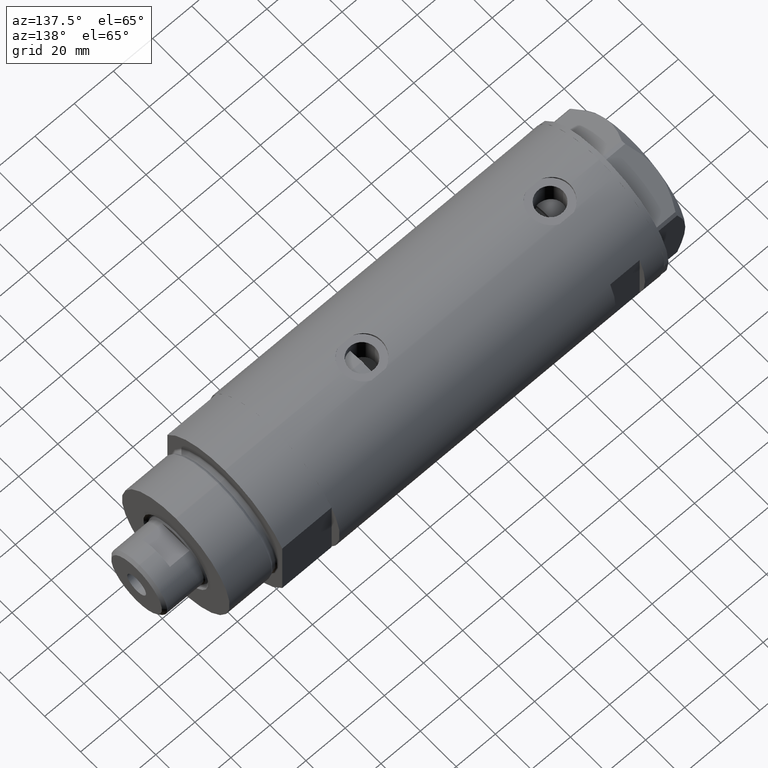
[diagram: clean part render]
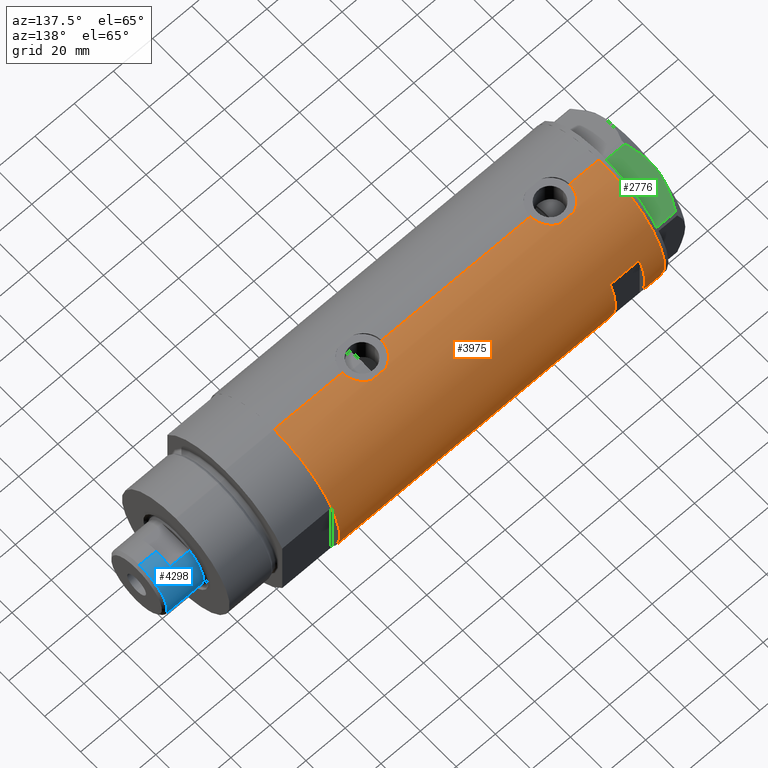
[diagram: same view with three faces highlighted in distinct colors, each labeled with its STEP entity id]
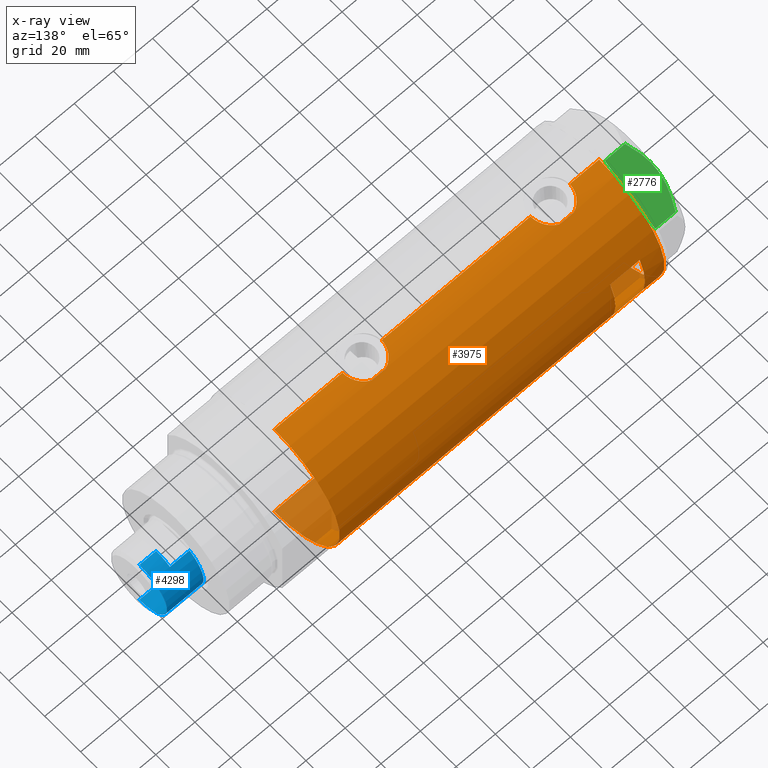
[diagram: x-ray of the same camera — body ghosted, the three highlighted faces saturated]
A machine part, auxiliary view with three faces highlighted in distinct colors.
The next image is the same camera in x-ray (body ghosted, the three faces saturated) — at least one of them is partly hidden behind the body in this view.
Their STEP definitions:

[orange] entity #3975 — the highlighted cylindrical surface (partial cylindrical patch) has radius 36.5 mm, axis along (-1, -0, 0).
#12 = ORIENTED_EDGE ( 'NONE', *, *, #3819, .F. ) ;
#64 = ORIENTED_EDGE ( 'NONE', *, *, #638, .F. ) ;
#77 = CARTESIAN_POINT ( 'NONE',  ( -36.50000000000000000, 4.469960816887838430E-15, 82.90000000000000568 ) ) ;
#123 = CARTESIAN_POINT ( 'NONE',  ( 36.50000000000000000, 0.000000000000000000, -82.90000000000000568 ) ) ;
#124 = ORIENTED_EDGE ( 'NONE', *, *, #3566, .F. ) ;
#127 = CARTESIAN_POINT ( 'NONE',  ( -36.03936508729894683, 5.782103729777503531, 61.29870532603795397 ) ) ;
#143 = CARTESIAN_POINT ( 'NONE',  ( -36.47290054070997911, 1.420408912806971014, 64.98986981660013384 ) ) ;
#155 = CARTESIAN_POINT ( 'NONE',  ( 36.49999999999999289, 1.005842003469123558, 47.89999999999999147 ) ) ;
#161 = CARTESIAN_POINT ( 'NONE',  ( -36.11199073531170001, 5.309184630646985426, 62.20412840766834250 ) ) ;
#174 = ORIENTED_EDGE ( 'NONE', *, *, #4420, .F. ) ;
#193 = CARTESIAN_POINT ( 'NONE',  ( -36.19624103943462501, 4.708090268046841942, 63.03061221446136386 ) ) ;
#210 = CARTESIAN_POINT ( 'NONE',  ( 35.52347503888660185, 8.410566959990466884, -32.60046032740658006 ) ) ;
#217 = CARTESIAN_POINT ( 'NONE',  ( -36.05296344941216091, 5.695624845616822363, 56.31845143463244341 ) ) ;
#231 = CARTESIAN_POINT ( 'NONE',  ( 36.50000000000000000, 0.000000000000000000, -48.10000000000000142 ) ) ;
#259 = CARTESIAN_POINT ( 'NONE',  ( 36.45954139109321090, 1.735915671103594571, -28.24863218852990698 ) ) ;
#270 = CIRCLE ( 'NONE', #4103, 36.50000000000000000 ) ;
#282 = CARTESIAN_POINT ( 'NONE',  ( -36.50000000000000000, 4.469960816887838430E-15, -82.90000000000000568 ) ) ;
#286 = CARTESIAN_POINT ( 'NONE',  ( -36.50000000000000000, 7.463603853851042361E-16, -40.34999999999999432 ) ) ;
#300 = CARTESIAN_POINT ( 'NONE',  ( 35.39804469700248291, 8.909380959553011792, -33.44946835517156103 ) ) ;
#301 = CARTESIAN_POINT ( 'NONE',  ( 35.83170458557579963, 6.955065627744201784, 65.08941671912468507 ) ) ;
#305 = EDGE_LOOP ( 'NONE', ( #4368, #2287, #174, #590 ) ) ;
#372 = CARTESIAN_POINT ( 'NONE',  ( -36.36587679577596077, 3.131448301962866054, -52.01282465573622460 ) ) ;
#386 = VERTEX_POINT ( 'NONE', #2314 ) ;
#388 = CARTESIAN_POINT ( 'NONE',  ( -36.50000000000000000, 4.469960493369248271E-15, 52.65000000000001279 ) ) ;
#395 = VECTOR ( 'NONE', #4148, 1000.000000000000000 ) ;
#493 = CARTESIAN_POINT ( 'NONE',  ( -36.43371204571226230, 2.206934156026284732, 64.75097281670994676 ) ) ;
#514 = CARTESIAN_POINT ( 'NONE',  ( -36.35033317675380715, 3.306376218664574207, 53.59229280583950583 ) ) ;
#526 = CARTESIAN_POINT ( 'NONE',  ( 35.29999999999999716, 9.282241108697837362, 54.17978495245235138 ) ) ;
#531 = CARTESIAN_POINT ( 'NONE',  ( -36.06675137892952421, 5.607935153446965693, 61.66681826008759515 ) ) ;
#545 = VERTEX_POINT ( 'NONE', #77 ) ;
#553 = CARTESIAN_POINT ( 'NONE',  ( 36.41717583764487642, 2.469534783404759182, 67.59348011175673321 ) ) ;
#557 = CARTESIAN_POINT ( 'NONE',  ( -36.50000000000000000, 4.469960493369248271E-15, 52.65000000000001279 ) ) ;
#577 = CARTESIAN_POINT ( 'NONE',  ( -35.96805604460922012, 6.209309709790239218, -47.42112758268170580 ) ) ;
#590 = ORIENTED_EDGE ( 'NONE', *, *, #669, .F. ) ;
#597 = CARTESIAN_POINT ( 'NONE',  ( -35.99700617875954123, 6.038972911021593504, -44.97666814201680552 ) ) ;
#636 = CARTESIAN_POINT ( 'NONE',  ( 36.00287854058830561, 6.017835360303004144, -46.10188117181726142 ) ) ;
#638 = EDGE_CURVE ( 'NONE', #1080, #3334, #871, .T. ) ;
#640 = CARTESIAN_POINT ( 'NONE',  ( 36.49999999999999289, 0.4961820988516169595, 67.89999999999997726 ) ) ;
#658 = CARTESIAN_POINT ( 'NONE',  ( -36.44504802628535600, 2.011764947064739406, -40.67906355091481174 ) ) ;
#669 = EDGE_CURVE ( 'NONE', #1028, #3922, #3795, .T. ) ;
#688 = CARTESIAN_POINT ( 'NONE',  ( 36.50000000000000000, 4.344604608721388599E-19, 67.90000000000000568 ) ) ;
#702 = DIRECTION ( 'NONE',  ( 0.000000000000000000, 0.000000000000000000, 1.000000000000000000 ) ) ;
#724 = CARTESIAN_POINT ( 'NONE',  ( 0.000000000000000000, 0.000000000000000000, -82.90000000000000568 ) ) ;
#728 = CARTESIAN_POINT ( 'NONE',  ( -36.35033317675381426, 3.306376218664579536, -51.90770719416052970 ) ) ;
#733 = LINE ( 'NONE', #785, #1485 ) ;
#748 = CARTESIAN_POINT ( 'NONE',  ( -36.46598788992681506, 1.625721481788706013, -52.64872046713838216 ) ) ;
#774 = AXIS2_PLACEMENT_3D ( 'NONE', #1960, #4020, #919 ) ;
#785 = CARTESIAN_POINT ( 'NONE',  ( -36.50000000000000000, 4.469960816887838430E-15, -82.90000000000000568 ) ) ;
#786 = VERTEX_POINT ( 'NONE', #1356 ) ;
#803 = CARTESIAN_POINT ( 'NONE',  ( -14.49137674618942739, 33.50000000000000000, 72.89999999999999147 ) ) ;
#804 = VERTEX_POINT ( 'NONE', #3774 ) ;
#825 = CARTESIAN_POINT ( 'NONE',  ( 36.26917563968162739, 4.104523505324179311, 48.77784011632527239 ) ) ;
#830 = CARTESIAN_POINT ( 'NONE',  ( -36.50000000000000000, 0.4137727629436733778, 65.15000000000000568 ) ) ;
#844 = LINE ( 'NONE', #1876, #3365 ) ;
#852 = CARTESIAN_POINT ( 'NONE',  ( 35.29999999999999716, 9.282241108697837362, 54.17978495245235138 ) ) ;
#855 = CARTESIAN_POINT ( 'NONE',  ( -35.96094343308265451, 6.249843792257625097, 59.31087110344572011 ) ) ;
#871 = LINE ( 'NONE', #3663, #1268 ) ;
#877 = EDGE_CURVE ( 'NONE', #786, #1098, #1008, .T. ) ;
#885 = DIRECTION ( 'NONE',  ( 0.000000000000000000, 4.625929269271492422E-15, 1.000000000000000000 ) ) ;
#886 = CARTESIAN_POINT ( 'NONE',  ( 36.00145998247697321, 6.026272765084660143, 65.89550388212386167 ) ) ;
#891 = CARTESIAN_POINT ( 'NONE',  ( -35.99530513653992614, 6.049346314076198716, 57.27667416964168012 ) ) ;
#893 = ORIENTED_EDGE ( 'NONE', *, *, #2117, .T. ) ;
#911 = CARTESIAN_POINT ( 'NONE',  ( 35.79715675463676661, 7.130463293899343746, -31.08444415894004109 ) ) ;
#914 = CARTESIAN_POINT ( 'NONE',  ( -35.96094343308264740, 6.249843792257639308, -46.18912889655430121 ) ) ;
#919 = DIRECTION ( 'NONE',  ( 1.000000000000000000, 0.000000000000000000, 0.000000000000000000 ) ) ;
#936 = EDGE_CURVE ( 'NONE', #1972, #3317, #733, .T. ) ;
#954 = CARTESIAN_POINT ( 'NONE',  ( 35.72794581931695035, 7.469526493268208611, -31.44660203271737586 ) ) ;
#976 = CARTESIAN_POINT ( 'NONE',  ( 36.13018480315371761, 5.199168368309162958, -46.65646498208050730 ) ) ;
#981 = CARTESIAN_POINT ( 'NONE',  ( 35.39804469700246869, 8.909380959553008239, 62.55053164482843187 ) ) ;
#986 = CARTESIAN_POINT ( 'NONE',  ( 35.29999999999999716, 9.282241108697837362, -34.37978495245235422 ) ) ;
#1001 = CARTESIAN_POINT ( 'NONE',  ( -36.11199073531169290, 5.309184630646996972, -43.29587159233165039 ) ) ;
#1005 = DIRECTION ( 'NONE',  ( 1.000000000000000000, 0.000000000000000000, 0.000000000000000000 ) ) ;
#1008 = LINE ( 'NONE', #3054, #3440 ) ;
#1028 = VERTEX_POINT ( 'NONE', #803 ) ;
#1070 = CARTESIAN_POINT ( 'NONE',  ( -36.30181775639988473, 3.813582387016784203, -51.56836057574439280 ) ) ;
#1080 = VERTEX_POINT ( 'NONE', #123 ) ;
#1098 = VERTEX_POINT ( 'NONE', #852 ) ;
#1169 = CARTESIAN_POINT ( 'NONE',  ( -36.49297130294515057, 0.8204796224394267368, 65.10931692217734224 ) ) ;
#1183 = CARTESIAN_POINT ( 'NONE',  ( 35.52737867031126484, 8.373910777960910323, 52.41139643282934202 ) ) ;
#1188 = VECTOR ( 'NONE', #2458, 1000.000000000000000 ) ;
#1191 = CARTESIAN_POINT ( 'NONE',  ( -36.16126303108062956, 4.966520032693292563, 62.71641227745282521 ) ) ;
#1217 = CARTESIAN_POINT ( 'NONE',  ( -36.49292802938586533, 0.8230716655928878023, 52.69093061246486798 ) ) ;
#1228 = CARTESIAN_POINT ( 'NONE',  ( 36.18948008481302026, 4.772042575486204363, -46.90177631243157919 ) ) ;
#1237 = CARTESIAN_POINT ( 'NONE',  ( -36.26643311080165688, 4.132772529026629726, 63.60619405269881099 ) ) ;
#1246 = EDGE_CURVE ( 'NONE', #4234, #1028, #4444, .T. ) ;
#1251 = CARTESIAN_POINT ( 'NONE',  ( 35.40502660484482789, 8.876998817796915020, -42.73098724071236632 ) ) ;
#1261 = FACE_BOUND ( 'NONE', #305, .T. ) ;
#1268 = VECTOR ( 'NONE', #1941, 1000.000000000000000 ) ;
#1281 = CIRCLE ( 'NONE', #2441, 36.50000000000000000 ) ;
#1306 = CARTESIAN_POINT ( 'NONE',  ( 36.48988646280794512, 0.9921857666168116818, -28.13671884865573602 ) ) ;
#1350 = CARTESIAN_POINT ( 'NONE',  ( -36.46462099658057099, 1.618684470865508596, -40.55975602975155425 ) ) ;
#1356 = CARTESIAN_POINT ( 'NONE',  ( 35.29999999999999716, 9.282241108697837362, 61.62021504754764578 ) ) ;
#1437 = CARTESIAN_POINT ( 'NONE',  ( -36.49292802938587243, 0.8230716655928884684, -52.80906938753516044 ) ) ;
#1457 = CARTESIAN_POINT ( 'NONE',  ( -36.50000000000000000, 4.469960493366092827E-15, -52.85000000000000853 ) ) ;
#1480 = DIRECTION ( 'NONE',  ( 0.000000000000000000, 1.000000000000000000, -4.562560375171875891E-15 ) ) ;
#1485 = VECTOR ( 'NONE', #2846, 1000.000000000000000 ) ;
#1497 = ORIENTED_EDGE ( 'NONE', *, *, #2841, .F. ) ;
#1498 = B_SPLINE_CURVE_WITH_KNOTS ( 'NONE', 3,
 ( #3360, #300, #210, #1589, #954, #911, #2967, #3064, #1636, #2640, #4065, #4111, #4441, #1954, #1661, #3701, #259, #1306, #2690, #3390 ),
 .UNSPECIFIED., .F., .F.,
 ( 4, 2, 2, 2, 2, 2, 2, 2, 2, 4 ),
 ( 0.000000000000000000, 0.002977391289382820029, 0.003721739111728531758, 0.004466086934074251294, 0.005954782578765692100, 0.007443478223457132038, 0.008932173868148571977, 0.009676521690494288910, 0.01042086951284000758, 0.01190956515753144491 ),
 .UNSPECIFIED. ) ;
#1508 = CARTESIAN_POINT ( 'NONE',  ( 36.29420020483470921, 3.877527130731371230, 48.67901025599706344 ) ) ;
#1514 = CARTESIAN_POINT ( 'NONE',  ( -36.09643313249889474, 5.413601294342269554, 55.76992226608147973 ) ) ;
#1526 = CARTESIAN_POINT ( 'NONE',  ( -14.49137674618942917, 33.50000000000000000, 57.89999999999999147 ) ) ;
#1530 = CARTESIAN_POINT ( 'NONE',  ( -36.44504802628534890, 2.011764947064734077, 64.82093644908518115 ) ) ;
#1549 = CARTESIAN_POINT ( 'NONE',  ( -36.36587679577596077, 3.131448301962862057, 53.48717534426381803 ) ) ;
#1575 = CARTESIAN_POINT ( 'NONE',  ( -35.96805604460922012, 6.209309709790225007, 58.07887241731829420 ) ) ;
#1582 = ORIENTED_EDGE ( 'NONE', *, *, #2074, .F. ) ;
#1586 = CARTESIAN_POINT ( 'NONE',  ( 35.59366931936805400, 8.089554397885871495, -43.99927319087814936 ) ) ;
#1589 = CARTESIAN_POINT ( 'NONE',  ( 35.69321149401852011, 7.633476302278306314, -31.63536927833558110 ) ) ;
#1606 = CARTESIAN_POINT ( 'NONE',  ( 36.36225053217121683, 3.177096004138048713, -47.58516024475981965 ) ) ;
#1610 = CARTESIAN_POINT ( 'NONE',  ( 35.79715675463678082, 7.130463293899336641, 64.91555584105995536 ) ) ;
#1632 = CARTESIAN_POINT ( 'NONE',  ( 36.34070350304396868, 3.414301401755547083, -47.50236217375907444 ) ) ;
#1635 = EDGE_CURVE ( 'NONE', #2489, #3058, #3834, .T. ) ;
#1636 = CARTESIAN_POINT ( 'NONE',  ( 36.00145998247696610, 6.026272765084661920, -30.10449611787613478 ) ) ;
#1661 = CARTESIAN_POINT ( 'NONE',  ( 36.41717583764485511, 2.469534783404757405, -28.40651988824328456 ) ) ;
#1699 = DIRECTION ( 'NONE',  ( 1.000000000000000000, 0.000000000000000000, 0.000000000000000000 ) ) ;
#1754 = EDGE_CURVE ( 'NONE', #386, #2883, #1769, .T. ) ;
#1769 = LINE ( 'NONE', #3474, #395 ) ;
#1781 = VECTOR ( 'NONE', #3897, 1000.000000000000000 ) ;
#1818 = CARTESIAN_POINT ( 'NONE',  ( 0.000000000000000000, 0.000000000000000000, 57.90000000000014779 ) ) ;
#1876 = CARTESIAN_POINT ( 'NONE',  ( -36.50000000000000000, 4.469960816887838430E-15, -82.90000000000000568 ) ) ;
#1879 = CARTESIAN_POINT ( 'NONE',  ( 36.50000000000000000, 0.000000000000000000, 47.89999999999999858 ) ) ;
#1884 = CARTESIAN_POINT ( 'NONE',  ( -36.01679413914727235, 5.919813138266318830, 60.91499691047037146 ) ) ;
#1893 = EDGE_CURVE ( 'NONE', #1968, #4018, #844, .T. ) ;
#1909 = CARTESIAN_POINT ( 'NONE',  ( -36.30181775639987762, 3.813582387016778430, 53.93163942425564983 ) ) ;
#1940 = CARTESIAN_POINT ( 'NONE',  ( -35.98846897517730525, 6.089479646546494429, 60.32234891546520572 ) ) ;
#1941 = DIRECTION ( 'NONE',  ( 0.000000000000000000, 0.000000000000000000, 1.000000000000000000 ) ) ;
#1950 = ORIENTED_EDGE ( 'NONE', *, *, #3500, .T. ) ;
#1954 = CARTESIAN_POINT ( 'NONE',  ( 36.40008489419980720, 2.709263960908029123, -28.47081895403607632 ) ) ;
#1960 = CARTESIAN_POINT ( 'NONE',  ( 0.000000000000000000, 0.000000000000000000, -82.90000000000000568 ) ) ;
#1968 = VERTEX_POINT ( 'NONE', #282 ) ;
#1972 = VERTEX_POINT ( 'NONE', #3718 ) ;
#1978 = CARTESIAN_POINT ( 'NONE',  ( 36.34264078466109993, 3.418717136061407480, 67.31049034040752588 ) ) ;
#1979 = CARTESIAN_POINT ( 'NONE',  ( -36.19624103943463211, 4.708090268046854376, -42.46938778553861482 ) ) ;
#2023 = DIRECTION ( 'NONE',  ( -0.000000000000000000, -0.000000000000000000, -1.000000000000000000 ) ) ;
#2026 = CARTESIAN_POINT ( 'NONE',  ( 36.29611582693039651, 3.878758190381167648, 67.13044989099549298 ) ) ;
#2040 = EDGE_CURVE ( 'NONE', #3893, #4383, #3385, .T. ) ;
#2043 = CARTESIAN_POINT ( 'NONE',  ( -36.01679413914727235, 5.919813138266332153, -44.58500308952962143 ) ) ;
#2052 = DIRECTION ( 'NONE',  ( 1.000000000000000000, 1.776356839400250465E-15, 0.000000000000000000 ) ) ;
#2069 = DIRECTION ( 'NONE',  ( -0.000000000000000000, -0.000000000000000000, -1.000000000000000000 ) ) ;
#2070 = CARTESIAN_POINT ( 'NONE',  ( 36.50000000000000000, 0.000000000000000000, -82.90000000000000568 ) ) ;
#2074 = EDGE_CURVE ( 'NONE', #3334, #4383, #2746, .T. ) ;
#2083 = B_SPLINE_CURVE_WITH_KNOTS ( 'NONE', 3,
 ( #3634, #830, #1169, #143, #2601, #1530, #493, #2909, #3973, #3617, #1237, #193, #1191, #161, #2580, #531, #127, #1884, #3955, #1940, #3597, #855, #2973, #1575, #891, #2282, #217, #2240, #1514, #4311, #2222, #3993, #3319, #1909, #514, #1549, #2260, #2952, #2929, #2623, #1217, #3662, #557 ),
 .UNSPECIFIED., .F., .F.,
 ( 4, 2, 2, 2, 2, 2, 2, 2, 1, 2, 2, 2, 2, 2, 2, 2, 2, 2, 2, 2, 2, 4 ),
 ( 2.134326792795658191E-19, 0.001223527801214134613, 0.001835291701821197691, 0.002447055602428260986, 0.003670583403642388443, 0.004894111204856515032, 0.006117639006070642489, 0.006729402906677714458, 0.007341166807284786426, 0.007952930707891856660, 0.008564694608498929496, 0.009788222409713092514, 0.01101175021092725553, 0.01223527801214141682, 0.01284704191274850180, 0.01345880581335558331, 0.01468233361456974632, 0.01590586141578391108, 0.01651762531639099432, 0.01712938921699807757, 0.01835291701821224059, 0.01957644481942640707 ),
 .UNSPECIFIED. ) ;
#2095 = CARTESIAN_POINT ( 'NONE',  ( -36.44628644024910358, 2.015372769639944828, -52.53028128013585984 ) ) ;
#2117 = EDGE_CURVE ( 'NONE', #1080, #1968, #3073, .T. ) ;
#2154 = ORIENTED_EDGE ( 'NONE', *, *, #2040, .T. ) ;
#2162 = LINE ( 'NONE', #2495, #1781 ) ;
#2222 = CARTESIAN_POINT ( 'NONE',  ( -36.16083474549355259, 4.969527450313370842, 55.08794680877250016 ) ) ;
#2234 = CARTESIAN_POINT ( 'NONE',  ( 36.50000000000000000, 0.000000000000000000, 82.90000000000000568 ) ) ;
#2240 = CARTESIAN_POINT ( 'NONE',  ( -36.06690560274405044, 5.606949625760669242, 56.13114076041065914 ) ) ;
#2254 = B_SPLINE_CURVE_WITH_KNOTS ( 'NONE', 3,
 ( #2734, #981, #2372, #2641, #3066, #1610, #301, #3048, #886, #3655, #2969, #2026, #1978, #4442, #553, #4421, #3746, #4348, #640, #3409 ),
 .UNSPECIFIED., .F., .F.,
 ( 4, 2, 2, 2, 2, 2, 2, 2, 2, 4 ),
 ( 0.000000000000000000, 0.002977391289382842147, 0.003721739111728546070, 0.004466086934074248692, 0.005954782578765684294, 0.007443478223457119895, 0.008932173868148556364, 0.009676521690494280237, 0.01042086951284000584, 0.01190956515753144838 ),
 .UNSPECIFIED. ) ;
#2260 = CARTESIAN_POINT ( 'NONE',  ( -36.39522946636254375, 2.769519034821240844, 53.29336076268729272 ) ) ;
#2276 = CARTESIAN_POINT ( 'NONE',  ( 36.13018480315371761, 5.199168368309162958, 49.34353501791949981 ) ) ;
#2282 = CARTESIAN_POINT ( 'NONE',  ( -36.01524716445113228, 5.931039972055507370, 56.88669268135342350 ) ) ;
#2287 = ORIENTED_EDGE ( 'NONE', *, *, #4277, .F. ) ;
#2304 = CARTESIAN_POINT ( 'NONE',  ( -35.96088929326157313, 6.250155299092693184, -47.00610494763245129 ) ) ;
#2314 = CARTESIAN_POINT ( 'NONE',  ( 36.50000000000000000, 4.344611676915099379E-19, -28.10000000000000142 ) ) ;
#2327 = CARTESIAN_POINT ( 'NONE',  ( -36.47290054070997911, 1.420408912806975898, -40.51013018339984484 ) ) ;
#2372 = CARTESIAN_POINT ( 'NONE',  ( 35.52347503888662317, 8.410566959990465108, 63.39953967259342704 ) ) ;
#2395 = CARTESIAN_POINT ( 'NONE',  ( -36.06675137892952421, 5.607935153446982568, -43.83318173991241906 ) ) ;
#2416 = B_SPLINE_CURVE_WITH_KNOTS ( 'NONE', 3,
 ( #1879, #155, #3288, #4244, #3224, #1508, #825, #4263, #2276, #2551, #2528, #3905, #3927, #4280, #1183, #3654, #3630, #526 ),
 .UNSPECIFIED., .F., .F.,
 ( 4, 2, 2, 2, 2, 2, 2, 2, 4 ),
 ( 6.505213034913026604E-19, 0.002973648994175712851, 0.003717061242719640196, 0.004460473491263567541, 0.005947297988351423099, 0.007434122485439277790, 0.008920946982527131613, 0.01040777147961498630, 0.01189459597670284099 ),
 .UNSPECIFIED. ) ;
#2439 = CARTESIAN_POINT ( 'NONE',  ( -36.11206433103227198, 5.308658295084047296, -49.90484648040978755 ) ) ;
#2441 = AXIS2_PLACEMENT_3D ( 'NONE', #1818, #885, #1480 ) ;
#2458 = DIRECTION ( 'NONE',  ( 0.000000000000000000, 0.000000000000000000, 1.000000000000000000 ) ) ;
#2473 = CARTESIAN_POINT ( 'NONE',  ( 35.34894515018993388, 9.096104616284849342, -42.28464083466543144 ) ) ;
#2489 = VERTEX_POINT ( 'NONE', #688 ) ;
#2495 = CARTESIAN_POINT ( 'NONE',  ( -36.50000000000000000, 4.469960816887838430E-15, -82.90000000000000568 ) ) ;
#2500 = CARTESIAN_POINT ( 'NONE',  ( -36.39522946636255085, 2.769519034821246617, -52.20663923731272860 ) ) ;
#2528 = CARTESIAN_POINT ( 'NONE',  ( 35.93456089024233790, 6.410413305453381838, 50.20914036795854685 ) ) ;
#2537 = ORIENTED_EDGE ( 'NONE', *, *, #936, .T. ) ;
#2551 = CARTESIAN_POINT ( 'NONE',  ( 36.00287854058830561, 6.017835360303004144, 49.89811882818275990 ) ) ;
#2580 = CARTESIAN_POINT ( 'NONE',  ( -36.09617453667821962, 5.415318599347956230, 62.02706642672912807 ) ) ;
#2601 = CARTESIAN_POINT ( 'NONE',  ( -36.46462099658055678, 1.618684470865503489, 64.94024397024845996 ) ) ;
#2614 = CARTESIAN_POINT ( 'NONE',  ( 35.72860827204725354, 7.471059959301286746, -44.76525150474409998 ) ) ;
#2623 = CARTESIAN_POINT ( 'NONE',  ( -36.46598788992681506, 1.625721481788708456, 52.85127953286164626 ) ) ;
#2640 = CARTESIAN_POINT ( 'NONE',  ( 36.12877841835538106, 5.208882251161926824, -29.54946835209708667 ) ) ;
#2641 = CARTESIAN_POINT ( 'NONE',  ( 35.69321149401850590, 7.633476302278302761, 64.36463072166442601 ) ) ;
#2642 = CARTESIAN_POINT ( 'NONE',  ( -36.03936508729894683, 5.782103729777510637, -44.20129467396203893 ) ) ;
#2647 = CYLINDRICAL_SURFACE ( 'NONE', #774, 36.50000000000000000 ) ;
#2688 = CARTESIAN_POINT ( 'NONE',  ( 35.29999999999999716, 9.282241108697837362, -82.90000000000000568 ) ) ;
#2690 = CARTESIAN_POINT ( 'NONE',  ( 36.50000000000000000, 0.4961820988516186803, -28.10000000000000142 ) ) ;
#2706 = CARTESIAN_POINT ( 'NONE',  ( 36.29420020483470921, 3.877527130731371230, -47.32098974400295077 ) ) ;
#2734 = CARTESIAN_POINT ( 'NONE',  ( 35.29999999999999716, 9.282241108697837362, 61.62021504754764578 ) ) ;
#2735 = CARTESIAN_POINT ( 'NONE',  ( -36.30200038006934449, 3.811959488093747961, -41.63027895163993009 ) ) ;
#2737 = DIRECTION ( 'NONE',  ( 0.000000000000000000, 0.000000000000000000, 1.000000000000000000 ) ) ;
#2746 = B_SPLINE_CURVE_WITH_KNOTS ( 'NONE', 3,
 ( #231, #4325, #4417, #1606, #1632, #2706, #4080, #1228, #976, #636, #3986, #3019, #2614, #1586, #2965, #1251, #2473, #3128 ),
 .UNSPECIFIED., .F., .F.,
 ( 4, 2, 2, 2, 2, 2, 2, 2, 4 ),
 ( 6.505213034913026604E-19, 0.002973648994175712851, 0.003717061242719640196, 0.004460473491263567541, 0.005947297988351423099, 0.007434122485439277790, 0.008920946982527131613, 0.01040777147961498630, 0.01189459597670284099 ),
 .UNSPECIFIED. ) ;
#2763 = VERTEX_POINT ( 'NONE', #2996 ) ;
#2787 = AXIS2_PLACEMENT_3D ( 'NONE', #724, #702, #1699 ) ;
#2799 = CARTESIAN_POINT ( 'NONE',  ( -36.16083474549354548, 4.969527450313382388, -50.41205319122751405 ) ) ;
#2835 = ORIENTED_EDGE ( 'NONE', *, *, #1754, .F. ) ;
#2841 = EDGE_CURVE ( 'NONE', #1972, #4018, #3447, .T. ) ;
#2846 = DIRECTION ( 'NONE',  ( 0.000000000000000000, 0.000000000000000000, 1.000000000000000000 ) ) ;
#2883 = VERTEX_POINT ( 'NONE', #4213 ) ;
#2909 = CARTESIAN_POINT ( 'NONE',  ( -36.39638105034455862, 2.774378062517167454, 64.51543332699104383 ) ) ;
#2929 = CARTESIAN_POINT ( 'NONE',  ( -36.44628644024910358, 2.015372769639941275, 52.96971871986416858 ) ) ;
#2952 = CARTESIAN_POINT ( 'NONE',  ( -36.40902375114222167, 2.582415566883931479, 53.20478308530312006 ) ) ;
#2965 = CARTESIAN_POINT ( 'NONE',  ( 35.52737867031126484, 8.373910777960910323, -43.58860356717065798 ) ) ;
#2967 = CARTESIAN_POINT ( 'NONE',  ( 35.83170458557578542, 6.955065627744200007, -30.91058328087535401 ) ) ;
#2969 = CARTESIAN_POINT ( 'NONE',  ( 36.18937351723702989, 4.773052864917642246, 66.70135993118843487 ) ) ;
#2970 = CARTESIAN_POINT ( 'NONE',  ( -35.96793274302673638, 6.210029014836893069, -45.78305762320682248 ) ) ;
#2973 = CARTESIAN_POINT ( 'NONE',  ( -35.96088929326158734, 6.250155299092678085, 58.49389505236757003 ) ) ;
#2974 = CARTESIAN_POINT ( 'NONE',  ( 0.000000000000000000, 0.000000000000000000, 72.89999999999999147 ) ) ;
#2996 = CARTESIAN_POINT ( 'NONE',  ( 14.49137674618942917, 33.50000000000000000, 57.89999999999999147 ) ) ;
#2997 = CARTESIAN_POINT ( 'NONE',  ( -14.49137674618942739, 33.50000000000000000, -82.90000000000000568 ) ) ;
#3019 = CARTESIAN_POINT ( 'NONE',  ( 35.79766710091576698, 7.135341284989892507, -45.12350520560902822 ) ) ;
#3025 = CARTESIAN_POINT ( 'NONE',  ( -35.99530513653993324, 6.049346314076213815, -48.22332583035833409 ) ) ;
#3048 = CARTESIAN_POINT ( 'NONE',  ( 35.93435287561198521, 6.411571491280764867, 65.58988644922843037 ) ) ;
#3049 = CARTESIAN_POINT ( 'NONE',  ( -36.49297130294515057, 0.8204796224394304005, -40.39068307782265066 ) ) ;
#3054 = CARTESIAN_POINT ( 'NONE',  ( 35.29999999999999716, 9.282241108697837362, -82.90000000000000568 ) ) ;
#3058 = VERTEX_POINT ( 'NONE', #2234 ) ;
#3064 = CARTESIAN_POINT ( 'NONE',  ( 35.93435287561198521, 6.411571491280768420, -30.41011355077158029 ) ) ;
#3066 = CARTESIAN_POINT ( 'NONE',  ( 35.72794581931695745, 7.469526493268204170, 64.55339796728263480 ) ) ;
#3067 = CARTESIAN_POINT ( 'NONE',  ( -36.43371204571226940, 2.206934156026296723, -40.74902718329001772 ) ) ;
#3073 = CIRCLE ( 'NONE', #2787, 36.50000000000000000 ) ;
#3088 = CARTESIAN_POINT ( 'NONE',  ( 36.50000000000000000, 0.000000000000000000, -48.10000000000000142 ) ) ;
#3093 = CARTESIAN_POINT ( 'NONE',  ( -36.05296344941215381, 5.695624845616832133, -49.18154856536755659 ) ) ;
#3128 = CARTESIAN_POINT ( 'NONE',  ( 35.29999999999999716, 9.282241108697837362, -41.82021504754764862 ) ) ;
#3132 = CARTESIAN_POINT ( 'NONE',  ( -36.26695135241004664, 4.128455078791307464, -51.31037591644739848 ) ) ;
#3169 = ORIENTED_EDGE ( 'NONE', *, *, #4200, .F. ) ;
#3224 = CARTESIAN_POINT ( 'NONE',  ( 36.34070350304396868, 3.414301401755547083, 48.49763782624093267 ) ) ;
#3288 = CARTESIAN_POINT ( 'NONE',  ( 36.45853166336078743, 1.985123042546143690, 48.04837329582261418 ) ) ;
#3317 = VERTEX_POINT ( 'NONE', #388 ) ;
#3319 = CARTESIAN_POINT ( 'NONE',  ( -36.26695135241003953, 4.128455078791303023, 54.18962408355263705 ) ) ;
#3334 = VERTEX_POINT ( 'NONE', #3088 ) ;
#3360 = CARTESIAN_POINT ( 'NONE',  ( 35.29999999999999716, 9.282241108697837362, -34.37978495245235422 ) ) ;
#3365 = VECTOR ( 'NONE', #3584, 1000.000000000000000 ) ;
#3373 = ORIENTED_EDGE ( 'NONE', *, *, #3952, .F. ) ;
#3385 = LINE ( 'NONE', #2688, #4007 ) ;
#3390 = CARTESIAN_POINT ( 'NONE',  ( 36.50000000000000000, 4.344611676915099379E-19, -28.10000000000000142 ) ) ;
#3408 = CARTESIAN_POINT ( 'NONE',  ( 35.29999999999999716, 9.282241108697837362, -41.82021504754764862 ) ) ;
#3409 = CARTESIAN_POINT ( 'NONE',  ( 36.50000000000000000, 4.344604608721388599E-19, 67.90000000000000568 ) ) ;
#3440 = VECTOR ( 'NONE', #4427, 1000.000000000000000 ) ;
#3447 = B_SPLINE_CURVE_WITH_KNOTS ( 'NONE', 3,
 ( #286, #4042, #3049, #2327, #1350, #658, #3067, #4422, #4443, #2735, #4113, #1979, #3703, #1001, #3682, #2395, #2642, #2043, #597, #4016, #2970, #914, #2304, #577, #3025, #3455, #3093, #4193, #3836, #2439, #2799, #4149, #3132, #1070, #728, #372, #2500, #3852, #2095, #748, #1437, #3879, #1457 ),
 .UNSPECIFIED., .F., .F.,
 ( 4, 2, 2, 2, 2, 2, 2, 2, 1, 2, 2, 2, 2, 2, 2, 2, 2, 2, 2, 2, 2, 4 ),
 ( 7.251201204191552072E-19, 0.001223527801214152827, 0.001835291701821226964, 0.002447055602428301752, 0.003670583403642443086, 0.004894111204856584421, 0.006117639006070725756, 0.006729402906677795122, 0.007341166807284864489, 0.007952930707891932988, 0.008564694608499004089, 0.009788222409713161903, 0.01101175021092732145, 0.01223527801214148100, 0.01284704191274855904, 0.01345880581335564055, 0.01468233361456980184, 0.01590586141578396312, 0.01651762531639104289, 0.01712938921699812267, 0.01835291701821228222, 0.01957644481942644524 ),
 .UNSPECIFIED. ) ;
#3455 = CARTESIAN_POINT ( 'NONE',  ( -36.01524716445113938, 5.931039972055519804, -48.61330731864658361 ) ) ;
#3474 = CARTESIAN_POINT ( 'NONE',  ( 36.50000000000000000, 0.000000000000000000, -82.90000000000000568 ) ) ;
#3500 = EDGE_CURVE ( 'NONE', #804, #545, #2162, .T. ) ;
#3566 = EDGE_CURVE ( 'NONE', #786, #2489, #2254, .T. ) ;
#3584 = DIRECTION ( 'NONE',  ( 0.000000000000000000, 0.000000000000000000, 1.000000000000000000 ) ) ;
#3597 = CARTESIAN_POINT ( 'NONE',  ( -35.96793274302675769, 6.210029014836877970, 59.71694237679319173 ) ) ;
#3598 = VECTOR ( 'NONE', #2069, 1000.000000000000000 ) ;
#3617 = CARTESIAN_POINT ( 'NONE',  ( -36.30200038006935159, 3.811959488093736415, 63.86972104836005570 ) ) ;
#3630 = CARTESIAN_POINT ( 'NONE',  ( 35.34894515018993388, 9.096104616284849342, 53.71535916533458987 ) ) ;
#3634 = CARTESIAN_POINT ( 'NONE',  ( -36.50000000000000000, 2.196845629780489385E-16, 65.15000000000000568 ) ) ;
#3654 = CARTESIAN_POINT ( 'NONE',  ( 35.40502660484482789, 8.876998817796915020, 53.26901275928763368 ) ) ;
#3655 = CARTESIAN_POINT ( 'NONE',  ( 36.12877841835537396, 5.208882251161923271, 66.45053164790293465 ) ) ;
#3662 = CARTESIAN_POINT ( 'NONE',  ( -36.50000000000001421, 0.4083036190459299886, 52.65000000000002700 ) ) ;
#3663 = CARTESIAN_POINT ( 'NONE',  ( 36.50000000000000000, 0.000000000000000000, -82.90000000000000568 ) ) ;
#3682 = CARTESIAN_POINT ( 'NONE',  ( -36.09617453667819831, 5.415318599347969553, -43.47293357327087193 ) ) ;
#3701 = CARTESIAN_POINT ( 'NONE',  ( 36.44688397185921502, 1.983417953489134744, -28.29550042351748829 ) ) ;
#3703 = CARTESIAN_POINT ( 'NONE',  ( -36.16126303108063667, 4.966520032693304998, -42.78358772254716058 ) ) ;
#3708 = ORIENTED_EDGE ( 'NONE', *, *, #4392, .F. ) ;
#3718 = CARTESIAN_POINT ( 'NONE',  ( -36.50000000000000000, 7.463603853851042361E-16, -40.34999999999999432 ) ) ;
#3746 = CARTESIAN_POINT ( 'NONE',  ( 36.45954139109321801, 1.735915671103596125, 67.75136781147011789 ) ) ;
#3758 = ORIENTED_EDGE ( 'NONE', *, *, #877, .T. ) ;
#3766 = LINE ( 'NONE', #4191, #3598 ) ;
#3774 = CARTESIAN_POINT ( 'NONE',  ( -36.50000000000000000, 2.196845629780489385E-16, 65.15000000000000568 ) ) ;
#3795 = CIRCLE ( 'NONE', #4370, 36.50000000000000000 ) ;
#3819 = EDGE_CURVE ( 'NONE', #804, #3317, #2083, .T. ) ;
#3834 = LINE ( 'NONE', #2070, #1188 ) ;
#3836 = CARTESIAN_POINT ( 'NONE',  ( -36.09643313249890895, 5.413601294342283765, -49.73007773391854869 ) ) ;
#3848 = ORIENTED_EDGE ( 'NONE', *, *, #1635, .F. ) ;
#3852 = CARTESIAN_POINT ( 'NONE',  ( -36.40902375114222167, 2.582415566883932811, -52.29521691469690836 ) ) ;
#3879 = CARTESIAN_POINT ( 'NONE',  ( -36.50000000000000711, 0.4083036190459276016, -52.85000000000001563 ) ) ;
#3893 = VERTEX_POINT ( 'NONE', #986 ) ;
#3897 = DIRECTION ( 'NONE',  ( 0.000000000000000000, 0.000000000000000000, 1.000000000000000000 ) ) ;
#3905 = CARTESIAN_POINT ( 'NONE',  ( 35.79766710091576698, 7.135341284989892507, 50.87649479439096467 ) ) ;
#3922 = VERTEX_POINT ( 'NONE', #4404 ) ;
#3927 = CARTESIAN_POINT ( 'NONE',  ( 35.72860827204725354, 7.471059959301286746, 51.23474849525592134 ) ) ;
#3952 = EDGE_CURVE ( 'NONE', #3058, #545, #270, .T. ) ;
#3955 = CARTESIAN_POINT ( 'NONE',  ( -35.99700617875953412, 6.038972911021577517, 60.52333185798319448 ) ) ;
#3973 = CARTESIAN_POINT ( 'NONE',  ( -36.36688032967139605, 3.133094607697478828, 64.32336432637509915 ) ) ;
#3975 = ADVANCED_FACE ( 'NONE', ( #1261, #4046 ), #2647, .T. ) ;
#3986 = CARTESIAN_POINT ( 'NONE',  ( 35.93456089024233790, 6.410413305453381838, -45.79085963204146026 ) ) ;
#3993 = CARTESIAN_POINT ( 'NONE',  ( -36.19597718496778072, 4.710322426433902088, 54.77148389237986237 ) ) ;
#4007 = VECTOR ( 'NONE', #2023, 1000.000000000000000 ) ;
#4016 = CARTESIAN_POINT ( 'NONE',  ( -35.98846897517729815, 6.089479646546508640, -45.17765108453480849 ) ) ;
#4018 = VERTEX_POINT ( 'NONE', #4472 ) ;
#4020 = DIRECTION ( 'NONE',  ( 0.000000000000000000, 0.000000000000000000, 1.000000000000000000 ) ) ;
#4042 = CARTESIAN_POINT ( 'NONE',  ( -36.50000000000000000, 0.4137727629436737109, -40.35000000000000142 ) ) ;
#4046 = FACE_OUTER_BOUND ( 'NONE', #4078, .T. ) ;
#4065 = CARTESIAN_POINT ( 'NONE',  ( 36.18937351723702989, 4.773052864917642246, -29.29864006881156513 ) ) ;
#4078 = EDGE_LOOP ( 'NONE', ( #893, #4324, #1497, #2537, #12, #1950, #3373, #3848, #124, #3758, #3169, #2835, #3708, #2154, #1582, #64 ) ) ;
#4080 = CARTESIAN_POINT ( 'NONE',  ( 36.26917563968162739, 4.104523505324179311, -47.22215988367477024 ) ) ;
#4091 = CARTESIAN_POINT ( 'NONE',  ( 0.000000000000000000, 0.000000000000000000, 82.90000000000000568 ) ) ;
#4103 = AXIS2_PLACEMENT_3D ( 'NONE', #4091, #2737, #1005 ) ;
#4111 = CARTESIAN_POINT ( 'NONE',  ( 36.29611582693038940, 3.878758190381168092, -28.86955010900449992 ) ) ;
#4113 = CARTESIAN_POINT ( 'NONE',  ( -36.26643311080166399, 4.132772529026643049, -41.89380594730118190 ) ) ;
#4148 = DIRECTION ( 'NONE',  ( 0.000000000000000000, 0.000000000000000000, 1.000000000000000000 ) ) ;
#4149 = CARTESIAN_POINT ( 'NONE',  ( -36.19597718496778782, 4.710322426433910081, -50.72851610762017316 ) ) ;
#4157 = DIRECTION ( 'NONE',  ( -0.000000000000000000, -0.000000000000000000, -1.000000000000000000 ) ) ;
#4191 = CARTESIAN_POINT ( 'NONE',  ( 14.49137674618942739, 33.50000000000000000, -82.90000000000000568 ) ) ;
#4193 = CARTESIAN_POINT ( 'NONE',  ( -36.06690560274405044, 5.606949625760679901, -49.36885923958933375 ) ) ;
#4200 = EDGE_CURVE ( 'NONE', #2883, #1098, #2416, .T. ) ;
#4213 = CARTESIAN_POINT ( 'NONE',  ( 36.50000000000000000, 0.000000000000000000, 47.89999999999999858 ) ) ;
#4234 = VERTEX_POINT ( 'NONE', #1526 ) ;
#4244 = CARTESIAN_POINT ( 'NONE',  ( 36.36225053217121683, 3.177096004138048713, 48.41483975524019456 ) ) ;
#4263 = CARTESIAN_POINT ( 'NONE',  ( 36.18948008481302026, 4.772042575486204363, 49.09822368756843503 ) ) ;
#4277 = EDGE_CURVE ( 'NONE', #2763, #4234, #1281, .T. ) ;
#4280 = CARTESIAN_POINT ( 'NONE',  ( 35.59366931936805400, 8.089554397885871495, 52.00072680912185774 ) ) ;
#4311 = CARTESIAN_POINT ( 'NONE',  ( -36.11206433103227909, 5.308658295084034862, 55.59515351959023377 ) ) ;
#4324 = ORIENTED_EDGE ( 'NONE', *, *, #1893, .T. ) ;
#4325 = CARTESIAN_POINT ( 'NONE',  ( 36.49999999999999289, 1.005842003469123558, -48.09999999999999432 ) ) ;
#4348 = CARTESIAN_POINT ( 'NONE',  ( 36.48988646280793802, 0.9921857666168150125, 67.86328115134426753 ) ) ;
#4363 = VECTOR ( 'NONE', #4402, 1000.000000000000000 ) ;
#4368 = ORIENTED_EDGE ( 'NONE', *, *, #1246, .F. ) ;
#4370 = AXIS2_PLACEMENT_3D ( 'NONE', #2974, #4157, #2052 ) ;
#4383 = VERTEX_POINT ( 'NONE', #3408 ) ;
#4392 = EDGE_CURVE ( 'NONE', #3893, #386, #1498, .T. ) ;
#4402 = DIRECTION ( 'NONE',  ( 0.000000000000000000, 0.000000000000000000, 1.000000000000000000 ) ) ;
#4404 = CARTESIAN_POINT ( 'NONE',  ( 14.49137674618942739, 33.50000000000000000, 72.89999999999999147 ) ) ;
#4417 = CARTESIAN_POINT ( 'NONE',  ( 36.45853166336078743, 1.985123042546143690, -47.95162670417735740 ) ) ;
#4420 = EDGE_CURVE ( 'NONE', #3922, #2763, #3766, .T. ) ;
#4421 = CARTESIAN_POINT ( 'NONE',  ( 36.44688397185922213, 1.983417953489136965, 67.70449957648254724 ) ) ;
#4422 = CARTESIAN_POINT ( 'NONE',  ( -36.39638105034455151, 2.774378062517180332, -40.98456667300897749 ) ) ;
#4427 = DIRECTION ( 'NONE',  ( -0.000000000000000000, -0.000000000000000000, -1.000000000000000000 ) ) ;
#4441 = CARTESIAN_POINT ( 'NONE',  ( 36.34264078466111414, 3.418717136061404815, -28.68950965959248123 ) ) ;
#4442 = CARTESIAN_POINT ( 'NONE',  ( 36.40008489419981430, 2.709263960908035784, 67.52918104596393789 ) ) ;
#4443 = CARTESIAN_POINT ( 'NONE',  ( -36.36688032967139605, 3.133094607697487266, -41.17663567362491506 ) ) ;
#4444 = LINE ( 'NONE', #2997, #4363 ) ;
#4472 = CARTESIAN_POINT ( 'NONE',  ( -36.50000000000000000, 4.469960493366092827E-15, -52.85000000000000853 ) ) ;

[blue] entity #4298 — the highlighted cylindrical surface (partial cylindrical patch) has radius 15.5 mm, axis along (-1, -0, 0).
#1 = EDGE_CURVE ( 'NONE', #945, #173, #4226, .T. ) ;
#78 = DIRECTION ( 'NONE',  ( 0.000000000000000000, 0.000000000000000000, 1.000000000000000000 ) ) ;
#110 = EDGE_CURVE ( 'NONE', #3980, #3604, #1189, .T. ) ;
#173 = VERTEX_POINT ( 'NONE', #2673 ) ;
#219 = ORIENTED_EDGE ( 'NONE', *, *, #3675, .T. ) ;
#341 = ORIENTED_EDGE ( 'NONE', *, *, #2573, .T. ) ;
#480 = VECTOR ( 'NONE', #3553, 1000.000000000000000 ) ;
#482 = VERTEX_POINT ( 'NONE', #2981 ) ;
#575 = CYLINDRICAL_SURFACE ( 'NONE', #628, 15.49999999999999822 ) ;
#621 = CARTESIAN_POINT ( 'NONE',  ( 15.49999999999999822, 1.898202538678397163E-15, 200.0000000000000000 ) ) ;
#628 = AXIS2_PLACEMENT_3D ( 'NONE', #4040, #3679, #999 ) ;
#794 = LINE ( 'NONE', #2179, #2496 ) ;
#818 = CARTESIAN_POINT ( 'NONE',  ( -13.48630416385452513, 7.639999999999917968, 190.0000000000000000 ) ) ;
#831 = AXIS2_PLACEMENT_3D ( 'NONE', #2001, #3310, #2366 ) ;
#867 = CARTESIAN_POINT ( 'NONE',  ( 0.000000000000000000, 0.000000000000000000, 190.0000000000000000 ) ) ;
#913 = CARTESIAN_POINT ( 'NONE',  ( 13.48630416385452868, 7.639999999999997904, 200.0000000000000000 ) ) ;
#941 = CARTESIAN_POINT ( 'NONE',  ( 15.50000000000000178, 1.898202538678397557E-15, 200.0000000000000000 ) ) ;
#945 = VERTEX_POINT ( 'NONE', #2760 ) ;
#999 = DIRECTION ( 'NONE',  ( -1.000000000000000000, 0.000000000000000000, 0.000000000000000000 ) ) ;
#1079 = CARTESIAN_POINT ( 'NONE',  ( 13.48630416385452868, 7.639999999999997904, 200.0000000000000000 ) ) ;
#1140 = CARTESIAN_POINT ( 'NONE',  ( -13.48630416385452868, 7.639999999999998792, 200.0000000000000000 ) ) ;
#1157 = EDGE_CURVE ( 'NONE', #173, #3980, #2328, .T. ) ;
#1189 = CIRCLE ( 'NONE', #2719, 15.50000000000000000 ) ;
#1213 = ORIENTED_EDGE ( 'NONE', *, *, #3188, .F. ) ;
#1280 = CARTESIAN_POINT ( 'NONE',  ( 13.48630416385452868, 7.639999999999997904, 190.0000000000000000 ) ) ;
#1324 = DIRECTION ( 'NONE',  ( -0.000000000000000000, -0.000000000000000000, -1.000000000000000000 ) ) ;
#1406 = AXIS2_PLACEMENT_3D ( 'NONE', #3417, #2447, #2422 ) ;
#1414 = AXIS2_PLACEMENT_3D ( 'NONE', #867, #1880, #3227 ) ;
#1464 = DIRECTION ( 'NONE',  ( 1.000000000000000000, 0.000000000000000000, 0.000000000000000000 ) ) ;
#1688 = VECTOR ( 'NONE', #2695, 1000.000000000000000 ) ;
#1802 = CARTESIAN_POINT ( 'NONE',  ( 0.000000000000000000, 0.000000000000000000, 200.0000000000000000 ) ) ;
#1853 = EDGE_LOOP ( 'NONE', ( #2550, #2064, #1921, #219, #341, #1213, #2874, #2000 ) ) ;
#1880 = DIRECTION ( 'NONE',  ( 0.000000000000000000, 0.000000000000000000, 1.000000000000000000 ) ) ;
#1892 = VERTEX_POINT ( 'NONE', #818 ) ;
#1921 = ORIENTED_EDGE ( 'NONE', *, *, #110, .T. ) ;
#1969 = EDGE_CURVE ( 'NONE', #3018, #482, #3728, .T. ) ;
#2000 = ORIENTED_EDGE ( 'NONE', *, *, #2284, .F. ) ;
#2001 = CARTESIAN_POINT ( 'NONE',  ( 0.000000000000000000, 0.000000000000000000, 200.0000000000000000 ) ) ;
#2064 = ORIENTED_EDGE ( 'NONE', *, *, #1157, .T. ) ;
#2151 = LINE ( 'NONE', #1079, #480 ) ;
#2179 = CARTESIAN_POINT ( 'NONE',  ( -15.49999999999999822, 0.000000000000000000, 200.0000000000000000 ) ) ;
#2187 = FACE_OUTER_BOUND ( 'NONE', #1853, .T. ) ;
#2284 = EDGE_CURVE ( 'NONE', #945, #482, #794, .T. ) ;
#2323 = LINE ( 'NONE', #4011, #3873 ) ;
#2328 = LINE ( 'NONE', #621, #1688 ) ;
#2366 = DIRECTION ( 'NONE',  ( 1.000000000000000000, 0.000000000000000000, 0.000000000000000000 ) ) ;
#2422 = DIRECTION ( 'NONE',  ( 1.000000000000000000, 0.000000000000000000, 0.000000000000000000 ) ) ;
#2447 = DIRECTION ( 'NONE',  ( 0.000000000000000000, 0.000000000000000000, -1.000000000000000000 ) ) ;
#2496 = VECTOR ( 'NONE', #2740, 1000.000000000000000 ) ;
#2550 = ORIENTED_EDGE ( 'NONE', *, *, #1, .T. ) ;
#2573 = EDGE_CURVE ( 'NONE', #4365, #1892, #3369, .T. ) ;
#2673 = CARTESIAN_POINT ( 'NONE',  ( 15.49999999999999822, 1.898202538678397163E-15, 208.5999999999999659 ) ) ;
#2695 = DIRECTION ( 'NONE',  ( -0.000000000000000000, -0.000000000000000000, -1.000000000000000000 ) ) ;
#2719 = AXIS2_PLACEMENT_3D ( 'NONE', #1802, #78, #1464 ) ;
#2740 = DIRECTION ( 'NONE',  ( -0.000000000000000000, -0.000000000000000000, -1.000000000000000000 ) ) ;
#2760 = CARTESIAN_POINT ( 'NONE',  ( -15.49999999999999822, 0.000000000000000000, 208.5999999999999659 ) ) ;
#2874 = ORIENTED_EDGE ( 'NONE', *, *, #1969, .T. ) ;
#2981 = CARTESIAN_POINT ( 'NONE',  ( -15.50000000000000178, 0.000000000000000000, 200.0000000000000000 ) ) ;
#3018 = VERTEX_POINT ( 'NONE', #1140 ) ;
#3188 = EDGE_CURVE ( 'NONE', #3018, #1892, #2323, .T. ) ;
#3227 = DIRECTION ( 'NONE',  ( 1.000000000000000000, 0.000000000000000000, 0.000000000000000000 ) ) ;
#3310 = DIRECTION ( 'NONE',  ( 0.000000000000000000, 0.000000000000000000, 1.000000000000000000 ) ) ;
#3369 = CIRCLE ( 'NONE', #1414, 15.49999999999995737 ) ;
#3417 = CARTESIAN_POINT ( 'NONE',  ( 0.000000000000000000, 0.000000000000000000, 208.5999999999999659 ) ) ;
#3553 = DIRECTION ( 'NONE',  ( -0.000000000000000000, -0.000000000000000000, -1.000000000000000000 ) ) ;
#3604 = VERTEX_POINT ( 'NONE', #913 ) ;
#3675 = EDGE_CURVE ( 'NONE', #3604, #4365, #2151, .T. ) ;
#3679 = DIRECTION ( 'NONE',  ( -0.000000000000000000, -0.000000000000000000, -1.000000000000000000 ) ) ;
#3728 = CIRCLE ( 'NONE', #831, 15.50000000000000000 ) ;
#3873 = VECTOR ( 'NONE', #1324, 1000.000000000000000 ) ;
#3980 = VERTEX_POINT ( 'NONE', #941 ) ;
#4011 = CARTESIAN_POINT ( 'NONE',  ( -13.48630416385452868, 7.639999999999998792, 200.0000000000000000 ) ) ;
#4040 = CARTESIAN_POINT ( 'NONE',  ( 0.000000000000000000, 0.000000000000000000, 200.0000000000000000 ) ) ;
#4226 = CIRCLE ( 'NONE', #1406, 15.49999999999999822 ) ;
#4298 = ADVANCED_FACE ( 'NONE', ( #2187 ), #575, .T. ) ;
#4365 = VERTEX_POINT ( 'NONE', #1280 ) ;

[green] entity #2776 — the highlighted planar face has unit normal (-0, -0.5, -0.866).
#10 = EDGE_CURVE ( 'NONE', #2687, #3378, #2721, .T. ) ;
#26 = VECTOR ( 'NONE', #1965, 1000.000000000000000 ) ;
#60 = ORIENTED_EDGE ( 'NONE', *, *, #622, .F. ) ;
#236 = PLANE ( 'NONE',  #3652 ) ;
#263 = CARTESIAN_POINT ( 'NONE',  ( 14.99999999999998757, -25.98076211353316722, 14.50000000000000000 ) ) ;
#292 = DIRECTION ( 'NONE',  ( 0.8660254037844389297, 0.4999999999999996114, 0.000000000000000000 ) ) ;
#410 = VECTOR ( 'NONE', #1282, 1000.000000000000000 ) ;
#515 = CARTESIAN_POINT ( 'NONE',  ( 22.77266513462829067, -21.49321180573469547, 13.19311392138146566 ) ) ;
#555 = CARTESIAN_POINT ( 'NONE',  ( 3.175372020745254709, -32.80771426042306160, 11.61522964162834803 ) ) ;
#582 = CARTESIAN_POINT ( 'NONE',  ( 29.03005154776141694, -17.88050807568878042, 14.50000000000000000 ) ) ;
#622 = EDGE_CURVE ( 'NONE', #1331, #879, #4438, .T. ) ;
#711 = EDGE_CURVE ( 'NONE', #3378, #879, #1988, .T. ) ;
#856 = CARTESIAN_POINT ( 'NONE',  ( 26.80734602959450541, -19.16378770493171402, 11.56973717813738212 ) ) ;
#879 = VERTEX_POINT ( 'NONE', #2400 ) ;
#881 = EDGE_LOOP ( 'NONE', ( #2937, #1618, #2941, #2313, #60 ) ) ;
#920 = CARTESIAN_POINT ( 'NONE',  ( 17.43031680809873762, -24.57761805016126644, 14.50000000000000711 ) ) ;
#956 = CARTESIAN_POINT ( 'NONE',  ( -5.841958412462644145E-15, -34.64101615137753498, 14.50000000000000000 ) ) ;
#1132 = EDGE_CURVE ( 'NONE', #3539, #1331, #1382, .T. ) ;
#1146 = CARTESIAN_POINT ( 'NONE',  ( 8.929227268745744794, -29.48572438411182262, 13.71922620632299861 ) ) ;
#1282 = DIRECTION ( 'NONE',  ( 0.000000000000000000, 0.000000000000000000, -1.000000000000000000 ) ) ;
#1331 = VERTEX_POINT ( 'NONE', #3521 ) ;
#1382 = B_SPLINE_CURVE_WITH_KNOTS ( 'NONE', 3,
 ( #1881, #555, #1544, #1146, #3658, #2599, #3972, #2531, #1843, #263 ),
 .UNSPECIFIED., .F., .F.,
 ( 4, 2, 2, 2, 4 ),
 ( 0.001230196178133386971, 0.009592363676680742274, 0.01377344742595442220, 0.01586398930059126217, 0.01795453117522810213 ),
 .UNSPECIFIED. ) ;
#1453 = CARTESIAN_POINT ( 'NONE',  ( 29.03005154776141694, -17.88050807568878042, 0.000000000000000000 ) ) ;
#1544 = CARTESIAN_POINT ( 'NONE',  ( 5.430403497542005020, -31.50577123026336679, 12.63511531451933045 ) ) ;
#1618 = ORIENTED_EDGE ( 'NONE', *, *, #3638, .T. ) ;
#1843 = CARTESIAN_POINT ( 'NONE',  ( 14.38812268849981457, -26.33402964403881086, 14.50000000000000533 ) ) ;
#1881 = CARTESIAN_POINT ( 'NONE',  ( 0.9699484522384129725, -34.08101615137761797, 10.40518423703596262 ) ) ;
#1955 = CARTESIAN_POINT ( 'NONE',  ( 0.9699484522385750651, -34.08101615137752560, 14.50000000000000000 ) ) ;
#1961 = CARTESIAN_POINT ( 'NONE',  ( 24.52256617298829156, -20.48290597018233328, 12.55468001512206833 ) ) ;
#1965 = DIRECTION ( 'NONE',  ( 0.000000000000000000, 0.000000000000000000, 1.000000000000000000 ) ) ;
#1988 = LINE ( 'NONE', #582, #26 ) ;
#2016 = CARTESIAN_POINT ( 'NONE',  ( -5.841958412462644145E-15, -34.64101615137753498, 0.000000000000000000 ) ) ;
#2134 = VECTOR ( 'NONE', #292, 1000.000000000000000 ) ;
#2189 = CARTESIAN_POINT ( 'NONE',  ( 0.9699484522385750651, -34.08101615137752560, 0.000000000000000000 ) ) ;
#2313 = ORIENTED_EDGE ( 'NONE', *, *, #711, .T. ) ;
#2346 = DIRECTION ( 'NONE',  ( -0.4999999999999996114, 0.8660254037844389297, 0.000000000000000000 ) ) ;
#2400 = CARTESIAN_POINT ( 'NONE',  ( 29.03005154776142049, -17.88050807568878042, 10.40518423703603901 ) ) ;
#2531 = CARTESIAN_POINT ( 'NONE',  ( 13.77383861939864218, -26.68868671669325821, 14.47500996539162088 ) ) ;
#2599 = CARTESIAN_POINT ( 'NONE',  ( 11.92931894229900891, -27.75362064879230317, 14.29910535634587276 ) ) ;
#2675 = CARTESIAN_POINT ( 'NONE',  ( 27.92668431253404293, -18.51753744596231854, 11.01056656432685266 ) ) ;
#2687 = VERTEX_POINT ( 'NONE', #2189 ) ;
#2710 = CARTESIAN_POINT ( 'NONE',  ( 0.9699484522384129725, -34.08101615137761797, 10.40518423703596262 ) ) ;
#2721 = LINE ( 'NONE', #2016, #2134 ) ;
#2776 = ADVANCED_FACE ( 'NONE', ( #4087 ), #236, .F. ) ;
#2937 = ORIENTED_EDGE ( 'NONE', *, *, #1132, .F. ) ;
#2941 = ORIENTED_EDGE ( 'NONE', *, *, #10, .T. ) ;
#3295 = CARTESIAN_POINT ( 'NONE',  ( 25.09761465865700103, -20.15090157218441647, 12.31959434659020047 ) ) ;
#3378 = VERTEX_POINT ( 'NONE', #1453 ) ;
#3428 = DIRECTION ( 'NONE',  ( -0.8660254037844389297, -0.4999999999999996114, 0.000000000000000000 ) ) ;
#3521 = CARTESIAN_POINT ( 'NONE',  ( 14.99999999999998757, -25.98076211353316722, 14.50000000000000000 ) ) ;
#3539 = VERTEX_POINT ( 'NONE', #2710 ) ;
#3638 = EDGE_CURVE ( 'NONE', #3539, #2687, #4375, .T. ) ;
#3652 = AXIS2_PLACEMENT_3D ( 'NONE', #956, #2346, #3428 ) ;
#3658 = CARTESIAN_POINT ( 'NONE',  ( 10.11505054612624477, -28.80108899570488035, 14.00566141361761296 ) ) ;
#3686 = CARTESIAN_POINT ( 'NONE',  ( 14.99999999999998757, -25.98076211353316722, 14.50000000000000000 ) ) ;
#3707 = CARTESIAN_POINT ( 'NONE',  ( 19.82219921729533141, -23.19666409734169221, 14.10092492974135503 ) ) ;
#3972 = CARTESIAN_POINT ( 'NONE',  ( 12.54037849421161077, -27.40082525200466179, 14.37423503257921986 ) ) ;
#4047 = CARTESIAN_POINT ( 'NONE',  ( 29.03005154776142049, -17.88050807568878042, 10.40518423703603901 ) ) ;
#4087 = FACE_OUTER_BOUND ( 'NONE', #881, .T. ) ;
#4334 = CARTESIAN_POINT ( 'NONE',  ( 23.36084816446653889, -21.15362417512481130, 12.99122625442232604 ) ) ;
#4375 = LINE ( 'NONE', #1955, #410 ) ;
#4438 = B_SPLINE_CURVE_WITH_KNOTS ( 'NONE', 3,
 ( #3686, #920, #3707, #515, #4334, #1961, #3295, #856, #2675, #4047 ),
 .UNSPECIFIED., .F., .F.,
 ( 4, 2, 2, 2, 4 ),
 ( 0.01795453117522810213, 0.02625795893839791284, 0.02833381587919036812, 0.03040967281998282340, 0.03456138670156773396 ),
 .UNSPECIFIED. ) ;